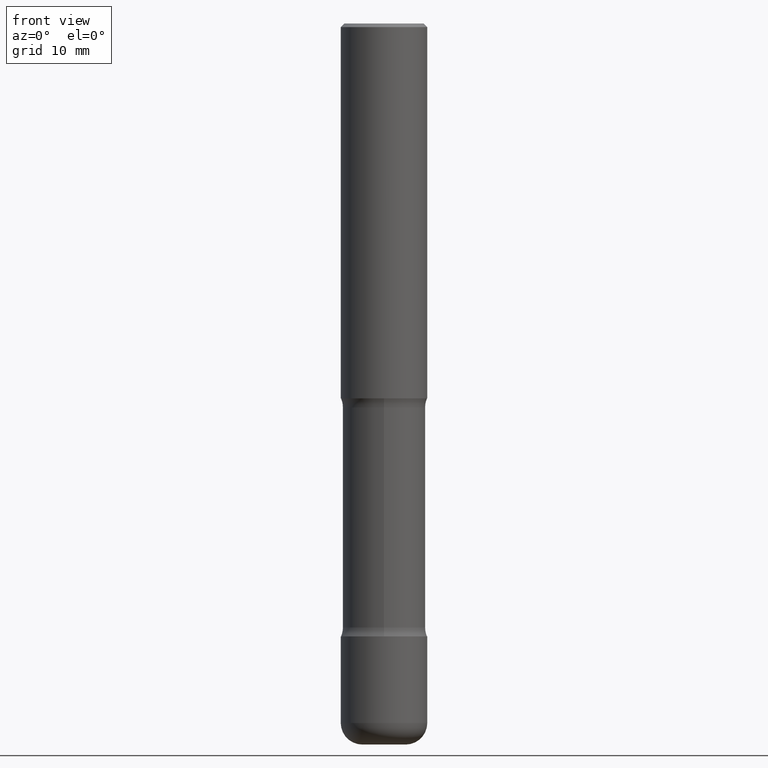
[diagram: clean part render]
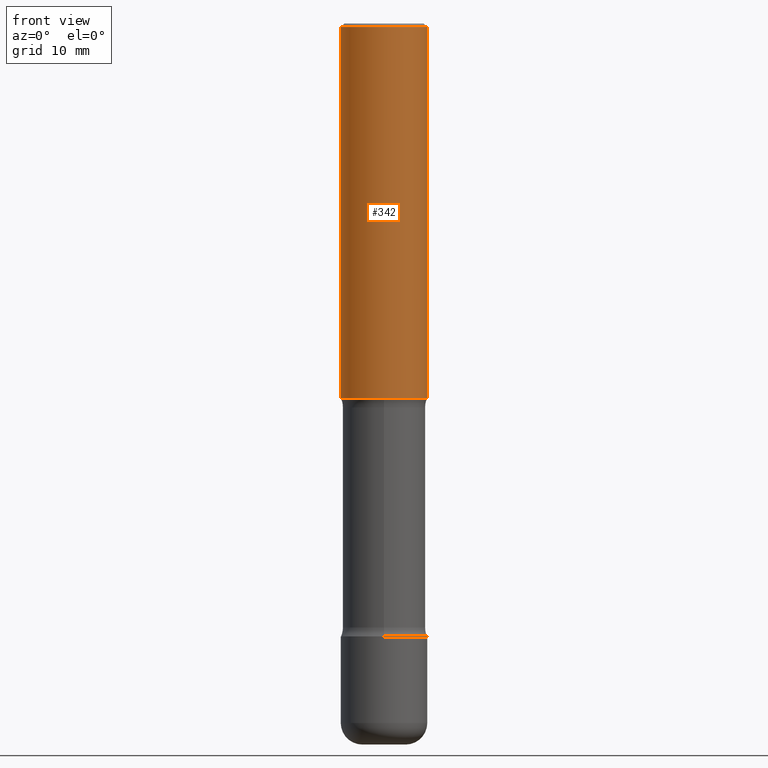
[diagram: same view with one face highlighted and labeled with its STEP entity id]
A machine part, front view. The second image highlights one B-rep face of the part: STEP entity #342.
In plain terms, the highlighted cylindrical surface (partial cylindrical patch) has radius 5.9995 mm, axis along (-0, 0, 1).
Its self-contained STEP definition (entity closure, byte-faithful):
#3 = EDGE_CURVE ( 'NONE', #112, #198, #415, .T. ) ;
#23 = VECTOR ( 'NONE', #264, 39.37007874015748143 ) ;
#26 = VERTEX_POINT ( 'NONE', #518 ) ;
#64 = EDGE_LOOP ( 'NONE', ( #469, #228, #525, #472 ) ) ;
#112 = VERTEX_POINT ( 'NONE', #394 ) ;
#116 = CARTESIAN_POINT ( 'NONE',  ( 0.000000000000000000, 0.000000000000000000, 0.000000000000000000 ) ) ;
#148 = DIRECTION ( 'NONE',  ( -2.445468806185136597E-29, 3.491481338843145583E-15, 1.000000000000000000 ) ) ;
#151 = VERTEX_POINT ( 'NONE', #265 ) ;
#187 = AXIS2_PLACEMENT_3D ( 'NONE', #521, #212, #209 ) ;
#198 = VERTEX_POINT ( 'NONE', #221 ) ;
#199 = CARTESIAN_POINT ( 'NONE',  ( -0.2362000000000004096, 1.678301941865359550E-15, -1.161852468318210719E-29 ) ) ;
#201 = EDGE_CURVE ( 'NONE', #198, #151, #481, .T. ) ;
#203 = DIRECTION ( 'NONE',  ( 1.000000000000000000, -6.982962677686266711E-15, 0.000000000000000000 ) ) ;
#209 = DIRECTION ( 'NONE',  ( 1.000000000000000000, -6.982962677686269077E-15, 0.000000000000000000 ) ) ;
#212 = DIRECTION ( 'NONE',  ( -2.445468806185136597E-29, 3.491481338843145583E-15, 1.000000000000000000 ) ) ;
#221 = CARTESIAN_POINT ( 'NONE',  ( 0.2362000000000005207, -8.797136381349187883E-15, -2.047200000000000131 ) ) ;
#228 = ORIENTED_EDGE ( 'NONE', *, *, #3, .T. ) ;
#240 = AXIS2_PLACEMENT_3D ( 'NONE', #527, #351, #203 ) ;
#253 = VECTOR ( 'NONE', #374, 39.37007874015748143 ) ;
#264 = DIRECTION ( 'NONE',  ( -2.445468806185136877E-29, 3.491481338843145188E-15, 1.000000000000000000 ) ) ;
#265 = CARTESIAN_POINT ( 'NONE',  ( 0.2362000000000002709, -1.690279253850500743E-15, -0.02000000000000006981 ) ) ;
#276 = EDGE_CURVE ( 'NONE', #112, #26, #333, .T. ) ;
#319 = CYLINDRICAL_SURFACE ( 'NONE', #529, 0.2362000000000004096 ) ;
#333 = LINE ( 'NONE', #199, #253 ) ;
#342 = ADVANCED_FACE ( 'NONE', ( #406 ), #319, .T. ) ;
#351 = DIRECTION ( 'NONE',  ( -2.445468806185136597E-29, 3.491481338843145583E-15, 1.000000000000000000 ) ) ;
#355 = EDGE_CURVE ( 'NONE', #26, #151, #444, .T. ) ;
#374 = DIRECTION ( 'NONE',  ( -2.445468806185136877E-29, 3.491481338843145188E-15, 1.000000000000000000 ) ) ;
#394 = CARTESIAN_POINT ( 'NONE',  ( -0.2362000000000005207, -1.930493169962913045E-15, -2.047200000000000131 ) ) ;
#406 = FACE_OUTER_BOUND ( 'NONE', #64, .T. ) ;
#410 = DIRECTION ( 'NONE',  ( 1.000000000000000000, -6.982962677686266711E-15, 4.876176775795935232E-29 ) ) ;
#415 = CIRCLE ( 'NONE', #187, 0.2362000000000005207 ) ;
#444 = CIRCLE ( 'NONE', #240, 0.2362000000000002709 ) ;
#469 = ORIENTED_EDGE ( 'NONE', *, *, #276, .F. ) ;
#472 = ORIENTED_EDGE ( 'NONE', *, *, #355, .F. ) ;
#481 = LINE ( 'NONE', #485, #23 ) ;
#485 = CARTESIAN_POINT ( 'NONE',  ( 0.2362000000000004096, -1.649375784469499089E-15, 1.151752954443001910E-29 ) ) ;
#518 = CARTESIAN_POINT ( 'NONE',  ( -0.2362000000000002709, 1.579546157692635002E-15, -0.02000000000000006981 ) ) ;
#521 = CARTESIAN_POINT ( 'NONE',  ( 5.006363740022211680E-29, -7.147760596879688202E-15, -2.047200000000000131 ) ) ;
#525 = ORIENTED_EDGE ( 'NONE', *, *, #201, .T. ) ;
#527 = CARTESIAN_POINT ( 'NONE',  ( 4.890937612370289799E-31, -6.982962677686315028E-17, -0.02000000000000006981 ) ) ;
#529 = AXIS2_PLACEMENT_3D ( 'NONE', #116, #148, #410 ) ;